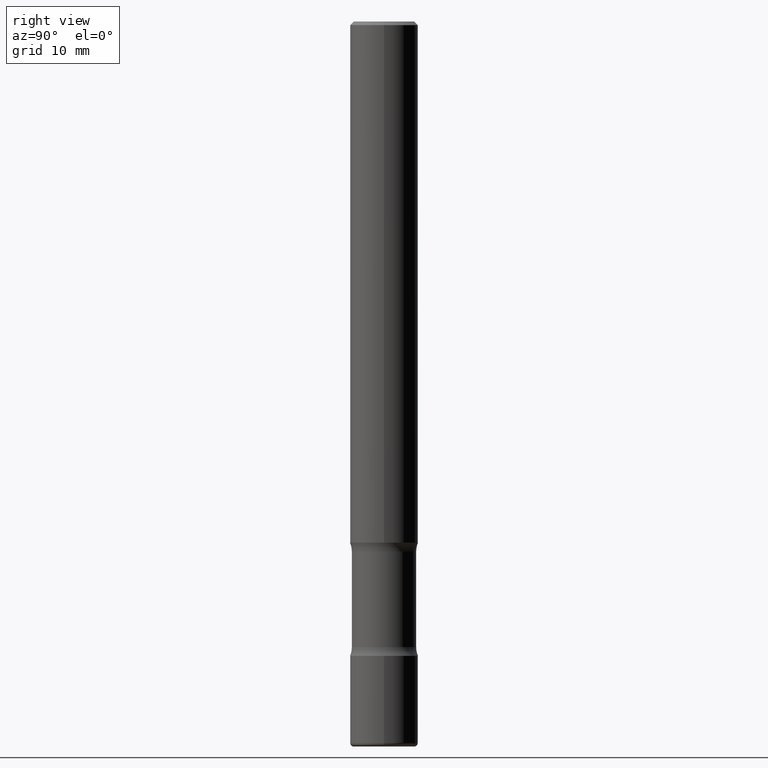
[diagram: clean part render]
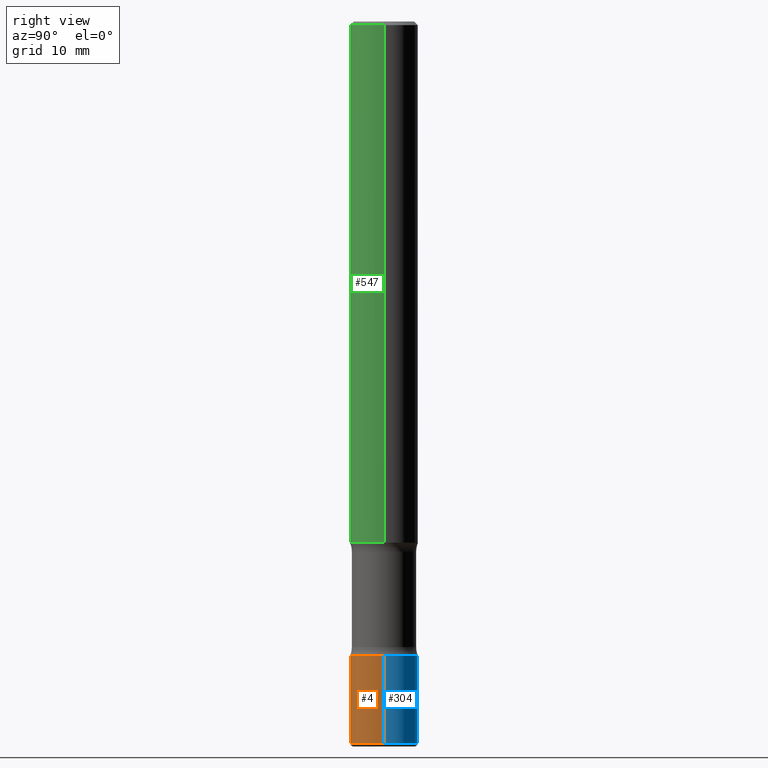
[diagram: same view with three faces highlighted in distinct colors, each labeled with its STEP entity id]
A machine part, right view with three faces highlighted in distinct colors.
Their STEP definitions:

[orange] entity #4 — the highlighted cylindrical surface (edge-blend (fillet) strip) has radius 4.7625 mm, axis along (-0, 0, 1).
#4 = ADVANCED_FACE ( 'NONE', ( #355 ), #311, .T. ) ;
#14 = CARTESIAN_POINT ( 'NONE',  ( 0.1875000000000003608, -1.309305502066177375E-15, 9.142831454617397828E-30 ) ) ;
#16 = LINE ( 'NONE', #14, #145 ) ;
#20 = CARTESIAN_POINT ( 'NONE',  ( 0.1875000000000003608, -1.352949018801718751E-14, -3.500000000000000000 ) ) ;
#23 = VERTEX_POINT ( 'NONE', #517 ) ;
#24 = ORIENTED_EDGE ( 'NONE', *, *, #487, .T. ) ;
#26 = EDGE_CURVE ( 'NONE', #440, #539, #395, .T. ) ;
#30 = CIRCLE ( 'NONE', #411, 0.1875000000000003608 ) ;
#44 = ORIENTED_EDGE ( 'NONE', *, *, #405, .F. ) ;
#66 = VECTOR ( 'NONE', #263, 39.37007874015748143 ) ;
#77 = DIRECTION ( 'NONE',  ( 1.000000000000000000, -6.982962677686265922E-15, 4.876176775795936353E-29 ) ) ;
#78 = EDGE_CURVE ( 'NONE', #532, #23, #30, .T. ) ;
#87 = CARTESIAN_POINT ( 'NONE',  ( -0.1875000000000003608, 1.332267629550190412E-15, -9.223003294227966207E-30 ) ) ;
#94 = CARTESIAN_POINT ( 'NONE',  ( -0.1875000000000003608, -1.172587257772317476E-14, -3.500000000000000000 ) ) ;
#128 = CARTESIAN_POINT ( 'NONE',  ( 8.559140821647976968E-29, -1.222018468595100934E-14, -3.500000000000000000 ) ) ;
#145 = VECTOR ( 'NONE', #443, 39.37007874015748143 ) ;
#179 = EDGE_LOOP ( 'NONE', ( #44, #459, #24, #238 ) ) ;
#204 = DIRECTION ( 'NONE',  ( -2.445468806185136597E-29, 3.491481338843145583E-15, 1.000000000000000000 ) ) ;
#207 = AXIS2_PLACEMENT_3D ( 'NONE', #384, #296, #77 ) ;
#238 = ORIENTED_EDGE ( 'NONE', *, *, #26, .F. ) ;
#263 = DIRECTION ( 'NONE',  ( -2.445468806185136877E-29, 3.491481338843145188E-15, 1.000000000000000000 ) ) ;
#296 = DIRECTION ( 'NONE',  ( -2.445468806185136597E-29, 3.491481338843145583E-15, 1.000000000000000000 ) ) ;
#302 = CARTESIAN_POINT ( 'NONE',  ( 9.732965848616844417E-29, -1.389609572859572061E-14, -3.979999999999999982 ) ) ;
#303 = DIRECTION ( 'NONE',  ( -2.445468806185136597E-29, 3.491481338843145583E-15, 1.000000000000000000 ) ) ;
#311 = CYLINDRICAL_SURFACE ( 'NONE', #207, 0.1875000000000003608 ) ;
#325 = AXIS2_PLACEMENT_3D ( 'NONE', #128, #303, #345 ) ;
#345 = DIRECTION ( 'NONE',  ( 1.000000000000000000, -6.982962677686269866E-15, 0.000000000000000000 ) ) ;
#347 = LINE ( 'NONE', #87, #66 ) ;
#355 = FACE_OUTER_BOUND ( 'NONE', #179, .T. ) ;
#367 = CARTESIAN_POINT ( 'NONE',  ( -0.1875000000000003331, -1.256382809904552961E-14, -3.979999999999999982 ) ) ;
#384 = CARTESIAN_POINT ( 'NONE',  ( 0.000000000000000000, 0.000000000000000000, 0.000000000000000000 ) ) ;
#395 = CIRCLE ( 'NONE', #325, 0.1875000000000003608 ) ;
#405 = EDGE_CURVE ( 'NONE', #532, #440, #347, .T. ) ;
#411 = AXIS2_PLACEMENT_3D ( 'NONE', #302, #204, #560 ) ;
#440 = VERTEX_POINT ( 'NONE', #94 ) ;
#443 = DIRECTION ( 'NONE',  ( -2.445468806185136877E-29, 3.491481338843145188E-15, 1.000000000000000000 ) ) ;
#459 = ORIENTED_EDGE ( 'NONE', *, *, #78, .T. ) ;
#487 = EDGE_CURVE ( 'NONE', #23, #539, #16, .T. ) ;
#517 = CARTESIAN_POINT ( 'NONE',  ( 0.1875000000000003331, -1.520540123066189720E-14, -3.979999999999999982 ) ) ;
#532 = VERTEX_POINT ( 'NONE', #367 ) ;
#539 = VERTEX_POINT ( 'NONE', #20 ) ;
#560 = DIRECTION ( 'NONE',  ( 1.000000000000000000, -6.982962677686269866E-15, 0.000000000000000000 ) ) ;

[blue] entity #304 — the highlighted cylindrical surface (edge-blend (fillet) strip) has radius 4.7625 mm, axis along (-0, 0, 1).
#14 = CARTESIAN_POINT ( 'NONE',  ( 0.1875000000000003608, -1.309305502066177375E-15, 9.142831454617397828E-30 ) ) ;
#15 = DIRECTION ( 'NONE',  ( -2.445468806185136597E-29, 3.491481338843145583E-15, 1.000000000000000000 ) ) ;
#16 = LINE ( 'NONE', #14, #145 ) ;
#20 = CARTESIAN_POINT ( 'NONE',  ( 0.1875000000000003608, -1.352949018801718751E-14, -3.500000000000000000 ) ) ;
#23 = VERTEX_POINT ( 'NONE', #517 ) ;
#39 = DIRECTION ( 'NONE',  ( 1.000000000000000000, -6.982962677686265922E-15, 4.876176775795936353E-29 ) ) ;
#66 = VECTOR ( 'NONE', #263, 39.37007874015748143 ) ;
#87 = CARTESIAN_POINT ( 'NONE',  ( -0.1875000000000003608, 1.332267629550190412E-15, -9.223003294227966207E-30 ) ) ;
#94 = CARTESIAN_POINT ( 'NONE',  ( -0.1875000000000003608, -1.172587257772317476E-14, -3.500000000000000000 ) ) ;
#98 = ORIENTED_EDGE ( 'NONE', *, *, #419, .T. ) ;
#121 = EDGE_CURVE ( 'NONE', #539, #440, #481, .T. ) ;
#141 = CIRCLE ( 'NONE', #412, 0.1875000000000003608 ) ;
#145 = VECTOR ( 'NONE', #443, 39.37007874015748143 ) ;
#149 = DIRECTION ( 'NONE',  ( -2.445468806185136597E-29, 3.491481338843145583E-15, 1.000000000000000000 ) ) ;
#150 = CARTESIAN_POINT ( 'NONE',  ( 0.000000000000000000, 0.000000000000000000, 0.000000000000000000 ) ) ;
#167 = ORIENTED_EDGE ( 'NONE', *, *, #405, .T. ) ;
#174 = CARTESIAN_POINT ( 'NONE',  ( 8.559140821647976968E-29, -1.222018468595100934E-14, -3.500000000000000000 ) ) ;
#177 = AXIS2_PLACEMENT_3D ( 'NONE', #150, #196, #39 ) ;
#196 = DIRECTION ( 'NONE',  ( -2.445468806185136597E-29, 3.491481338843145583E-15, 1.000000000000000000 ) ) ;
#236 = DIRECTION ( 'NONE',  ( 1.000000000000000000, -6.982962677686269866E-15, 0.000000000000000000 ) ) ;
#263 = DIRECTION ( 'NONE',  ( -2.445468806185136877E-29, 3.491481338843145188E-15, 1.000000000000000000 ) ) ;
#291 = CYLINDRICAL_SURFACE ( 'NONE', #177, 0.1875000000000003608 ) ;
#304 = ADVANCED_FACE ( 'NONE', ( #551 ), #291, .T. ) ;
#319 = ORIENTED_EDGE ( 'NONE', *, *, #487, .F. ) ;
#347 = LINE ( 'NONE', #87, #66 ) ;
#367 = CARTESIAN_POINT ( 'NONE',  ( -0.1875000000000003331, -1.256382809904552961E-14, -3.979999999999999982 ) ) ;
#402 = CARTESIAN_POINT ( 'NONE',  ( 9.732965848616844417E-29, -1.389609572859572061E-14, -3.979999999999999982 ) ) ;
#405 = EDGE_CURVE ( 'NONE', #532, #440, #347, .T. ) ;
#412 = AXIS2_PLACEMENT_3D ( 'NONE', #402, #15, #516 ) ;
#419 = EDGE_CURVE ( 'NONE', #23, #532, #141, .T. ) ;
#440 = VERTEX_POINT ( 'NONE', #94 ) ;
#443 = DIRECTION ( 'NONE',  ( -2.445468806185136877E-29, 3.491481338843145188E-15, 1.000000000000000000 ) ) ;
#463 = ORIENTED_EDGE ( 'NONE', *, *, #121, .F. ) ;
#481 = CIRCLE ( 'NONE', #530, 0.1875000000000003608 ) ;
#487 = EDGE_CURVE ( 'NONE', #23, #539, #16, .T. ) ;
#491 = EDGE_LOOP ( 'NONE', ( #98, #167, #463, #319 ) ) ;
#516 = DIRECTION ( 'NONE',  ( 1.000000000000000000, -6.982962677686269866E-15, 0.000000000000000000 ) ) ;
#517 = CARTESIAN_POINT ( 'NONE',  ( 0.1875000000000003331, -1.520540123066189720E-14, -3.979999999999999982 ) ) ;
#530 = AXIS2_PLACEMENT_3D ( 'NONE', #174, #149, #236 ) ;
#532 = VERTEX_POINT ( 'NONE', #367 ) ;
#539 = VERTEX_POINT ( 'NONE', #20 ) ;
#551 = FACE_OUTER_BOUND ( 'NONE', #491, .T. ) ;

[green] entity #547 — the highlighted cylindrical surface (edge-blend (fillet) strip) has radius 4.7625 mm, axis along (-0, 0, 1).
#2 = EDGE_CURVE ( 'NONE', #53, #431, #287, .T. ) ;
#3 = DIRECTION ( 'NONE',  ( -2.445468806185136597E-29, 3.491481338843145583E-15, 1.000000000000000000 ) ) ;
#7 = AXIS2_PLACEMENT_3D ( 'NONE', #31, #373, #496 ) ;
#31 = CARTESIAN_POINT ( 'NONE',  ( 0.000000000000000000, 0.000000000000000000, 0.000000000000000000 ) ) ;
#36 = CARTESIAN_POINT ( 'NONE',  ( -0.1875000000000002498, 1.332267629550189623E-15, -9.223003294227960602E-30 ) ) ;
#53 = VERTEX_POINT ( 'NONE', #318 ) ;
#81 = CARTESIAN_POINT ( 'NONE',  ( 0.1875000000000003886, -1.134731435124022127E-14, -2.875000000000000000 ) ) ;
#108 = VECTOR ( 'NONE', #112, 39.37007874015748143 ) ;
#110 = CIRCLE ( 'NONE', #274, 0.1875000000000001110 ) ;
#112 = DIRECTION ( 'NONE',  ( -2.445468806185136877E-29, 3.491481338843145188E-15, 1.000000000000000000 ) ) ;
#140 = VERTEX_POINT ( 'NONE', #186 ) ;
#152 = LINE ( 'NONE', #36, #449 ) ;
#160 = DIRECTION ( 'NONE',  ( 1.000000000000000000, -6.982962677686269077E-15, 0.000000000000000000 ) ) ;
#175 = EDGE_CURVE ( 'NONE', #431, #140, #334, .T. ) ;
#186 = CARTESIAN_POINT ( 'NONE',  ( 0.1875000000000001110, -1.356173001359025861E-15, -0.02000000000000000042 ) ) ;
#195 = DIRECTION ( 'NONE',  ( -2.445468806185136877E-29, 3.491481338843145188E-15, 1.000000000000000000 ) ) ;
#241 = CARTESIAN_POINT ( 'NONE',  ( 7.030722817782267716E-29, -1.003800884917404311E-14, -2.875000000000000000 ) ) ;
#258 = ORIENTED_EDGE ( 'NONE', *, *, #299, .F. ) ;
#269 = ORIENTED_EDGE ( 'NONE', *, *, #175, .T. ) ;
#274 = AXIS2_PLACEMENT_3D ( 'NONE', #502, #381, #458 ) ;
#287 = CIRCLE ( 'NONE', #548, 0.1875000000000003886 ) ;
#299 = EDGE_CURVE ( 'NONE', #53, #351, #152, .T. ) ;
#309 = EDGE_CURVE ( 'NONE', #351, #140, #110, .T. ) ;
#318 = CARTESIAN_POINT ( 'NONE',  ( -0.1875000000000003886, -3.721651608425259832E-15, -2.875000000000000000 ) ) ;
#334 = LINE ( 'NONE', #467, #108 ) ;
#351 = VERTEX_POINT ( 'NONE', #399 ) ;
#373 = DIRECTION ( 'NONE',  ( -2.445468806185136597E-29, 3.491481338843145583E-15, 1.000000000000000000 ) ) ;
#375 = CYLINDRICAL_SURFACE ( 'NONE', #7, 0.1875000000000002498 ) ;
#381 = DIRECTION ( 'NONE',  ( -2.445468806185136597E-29, 3.491481338843145583E-15, 1.000000000000000000 ) ) ;
#399 = CARTESIAN_POINT ( 'NONE',  ( -0.1875000000000001110, 1.239475875289312893E-15, -0.02000000000000000042 ) ) ;
#431 = VERTEX_POINT ( 'NONE', #81 ) ;
#441 = ORIENTED_EDGE ( 'NONE', *, *, #309, .F. ) ;
#449 = VECTOR ( 'NONE', #195, 39.37007874015748143 ) ;
#458 = DIRECTION ( 'NONE',  ( 1.000000000000000000, -6.982962677686266711E-15, 0.000000000000000000 ) ) ;
#467 = CARTESIAN_POINT ( 'NONE',  ( 0.1875000000000002498, -1.309305502066176783E-15, 9.142831454617392223E-30 ) ) ;
#494 = ORIENTED_EDGE ( 'NONE', *, *, #2, .T. ) ;
#496 = DIRECTION ( 'NONE',  ( 1.000000000000000000, -6.982962677686266711E-15, 4.876176775795935793E-29 ) ) ;
#499 = FACE_OUTER_BOUND ( 'NONE', #528, .T. ) ;
#502 = CARTESIAN_POINT ( 'NONE',  ( 4.890937612370273159E-31, -6.982962677686291609E-17, -0.02000000000000000042 ) ) ;
#528 = EDGE_LOOP ( 'NONE', ( #258, #494, #269, #441 ) ) ;
#547 = ADVANCED_FACE ( 'NONE', ( #499 ), #375, .T. ) ;
#548 = AXIS2_PLACEMENT_3D ( 'NONE', #241, #3, #160 ) ;